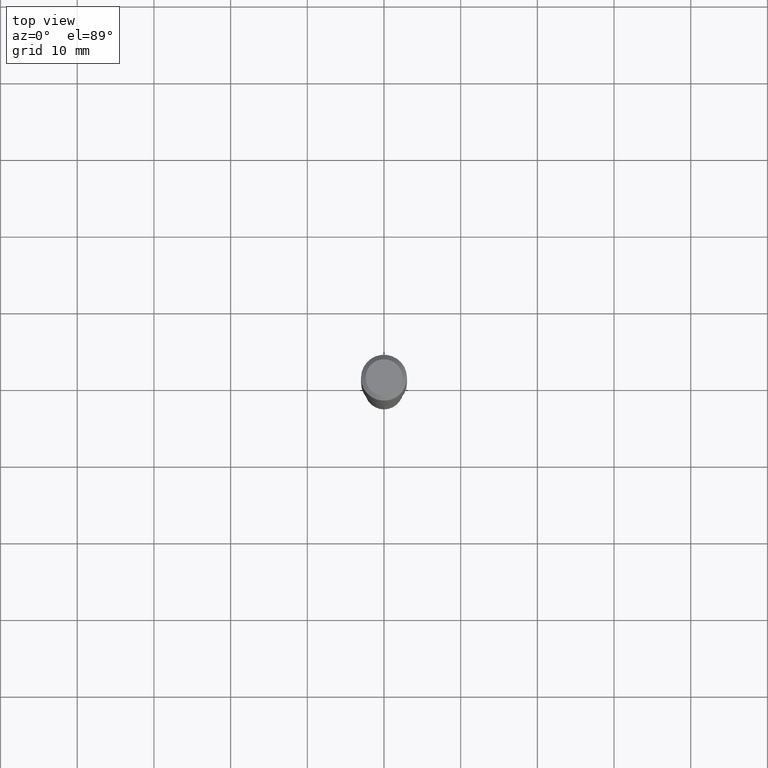
[diagram: clean part render]
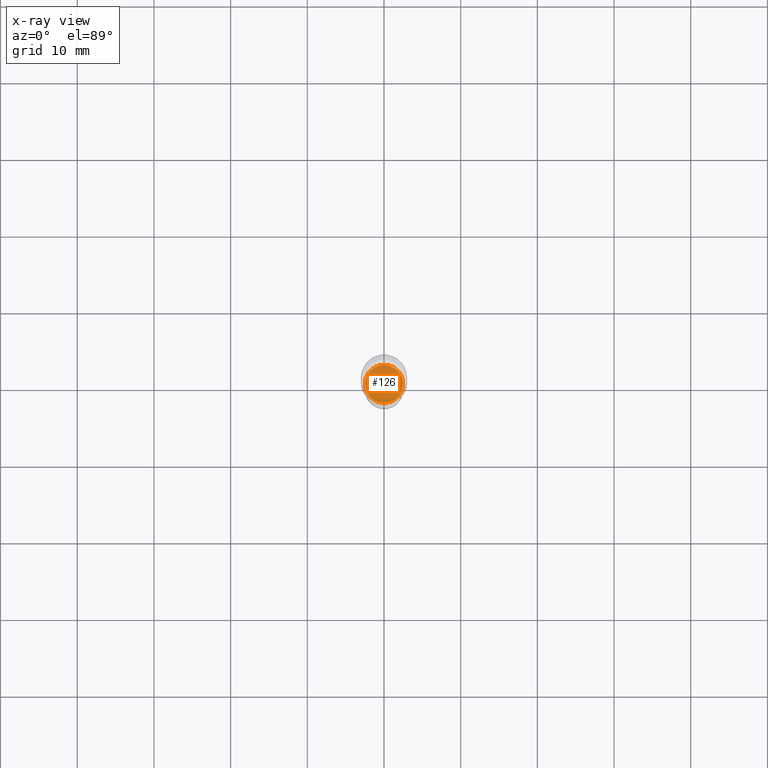
[diagram: x-ray — body ghosted, one internal face saturated and labeled with its STEP entity id]
A machine part, top view, then the same camera in x-ray: the body is ghosted and one INTERNAL B-rep face — a face not visible from any outside direction — is saturated and labeled: STEP entity #126.
In plain terms, the highlighted planar face has unit normal (-0, 0, 1).
Its self-contained STEP definition (entity closure, byte-faithful):
#2 = CARTESIAN_POINT ( 'NONE',  ( 4.525095478964977954E-29, -6.460637069395358365E-15, -1.850400000000000489 ) ) ;
#19 = AXIS2_PLACEMENT_3D ( 'NONE', #179, #75, #349 ) ;
#43 = DIRECTION ( 'NONE',  ( 1.000000000000000000, -6.982962677686270655E-15, 0.000000000000000000 ) ) ;
#52 = VERTEX_POINT ( 'NONE', #67 ) ;
#65 = ORIENTED_EDGE ( 'NONE', *, *, #162, .F. ) ;
#67 = CARTESIAN_POINT ( 'NONE',  ( 0.09794999999999999540, -7.144618263674728707E-15, -1.850400000000000489 ) ) ;
#75 = DIRECTION ( 'NONE',  ( -2.438088387897960049E-29, 3.491481338843145188E-15, 1.000000000000000000 ) ) ;
#110 = DIRECTION ( 'NONE',  ( -2.445468806185136597E-29, 3.491481338843145583E-15, 1.000000000000000000 ) ) ;
#126 = ADVANCED_FACE ( 'NONE', ( #463 ), #146, .F. ) ;
#143 = DIRECTION ( 'NONE',  ( 1.000000000000000000, -6.982962677686270655E-15, 0.000000000000000000 ) ) ;
#146 = PLANE ( 'NONE',  #19 ) ;
#162 = EDGE_CURVE ( 'NONE', #52, #286, #239, .T. ) ;
#179 = CARTESIAN_POINT ( 'NONE',  ( 9.213224486800139199E-30, -1.162144516278622558E-14, -1.850400000000000489 ) ) ;
#239 = CIRCLE ( 'NONE', #291, 0.09794999999999999540 ) ;
#286 = VERTEX_POINT ( 'NONE', #386 ) ;
#291 = AXIS2_PLACEMENT_3D ( 'NONE', #2, #110, #143 ) ;
#312 = CIRCLE ( 'NONE', #421, 0.09794999999999999540 ) ;
#321 = EDGE_CURVE ( 'NONE', #286, #52, #312, .T. ) ;
#349 = DIRECTION ( 'NONE',  ( 1.000000000000000000, -6.982962677686265922E-15, 4.876176775795935793E-29 ) ) ;
#386 = CARTESIAN_POINT ( 'NONE',  ( -0.09794999999999999540, -5.762011232544228374E-15, -1.850400000000000489 ) ) ;
#389 = CARTESIAN_POINT ( 'NONE',  ( 4.525095478964977954E-29, -6.460637069395358365E-15, -1.850400000000000489 ) ) ;
#421 = AXIS2_PLACEMENT_3D ( 'NONE', #389, #478, #43 ) ;
#449 = ORIENTED_EDGE ( 'NONE', *, *, #321, .F. ) ;
#463 = FACE_OUTER_BOUND ( 'NONE', #489, .T. ) ;
#478 = DIRECTION ( 'NONE',  ( -2.445468806185136597E-29, 3.491481338843145583E-15, 1.000000000000000000 ) ) ;
#489 = EDGE_LOOP ( 'NONE', ( #65, #449 ) ) ;